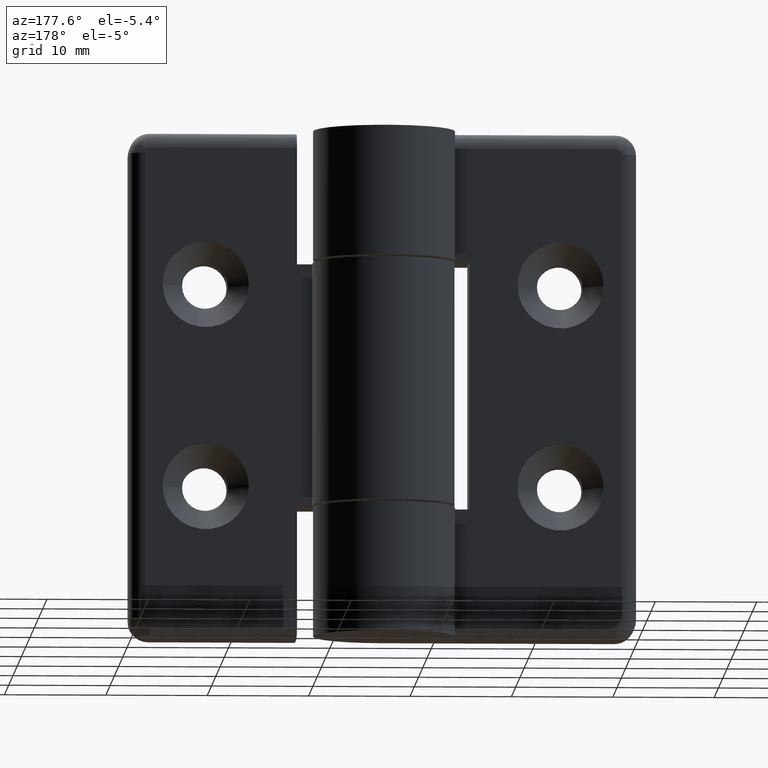
[diagram: clean part render]
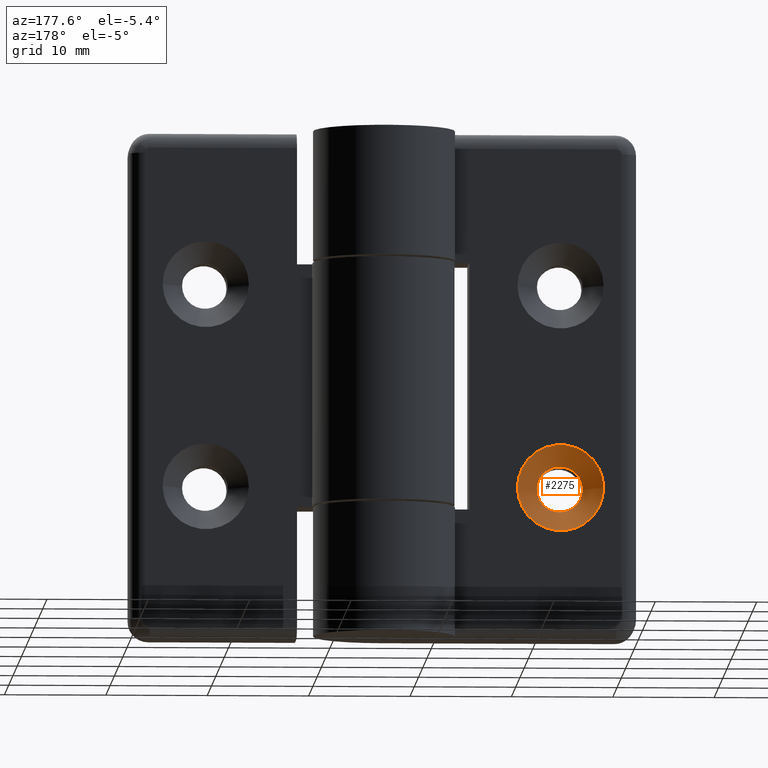
[diagram: same view with one face highlighted and labeled with its STEP entity id]
A machine part, auxiliary view. The second image highlights one B-rep face of the part: STEP entity #2275.
In plain terms, the highlighted conical surface has half-angle 45 deg.
Its self-contained STEP definition (entity closure, byte-faithful):
#40=FACE_BOUND('',#349,.T.);
#69=CONICAL_SURFACE('',#2483,3.25,0.785398163397448);
#199=FACE_OUTER_BOUND('',#348,.T.);
#348=EDGE_LOOP('',(#1701));
#349=EDGE_LOOP('',(#1702));
#849=CIRCLE('',#2484,4.25);
#850=CIRCLE('',#2485,2.25);
#1027=VERTEX_POINT('',#3814);
#1028=VERTEX_POINT('',#3816);
#1281=EDGE_CURVE('',#1027,#1027,#849,.T.);
#1282=EDGE_CURVE('',#1028,#1028,#850,.T.);
#1701=ORIENTED_EDGE('',*,*,#1281,.F.);
#1702=ORIENTED_EDGE('',*,*,#1282,.F.);
#2275=ADVANCED_FACE('',(#199,#40),#69,.F.);
#2483=AXIS2_PLACEMENT_3D('',#3813,#2944,#2945);
#2484=AXIS2_PLACEMENT_3D('',#3815,#2946,#2947);
#2485=AXIS2_PLACEMENT_3D('',#3817,#2948,#2949);
#2944=DIRECTION('center_axis',(0.,1.,0.));
#2945=DIRECTION('ref_axis',(1.,0.,0.));
#2946=DIRECTION('center_axis',(0.,-1.,0.));
#2947=DIRECTION('ref_axis',(1.,0.,0.));
#2948=DIRECTION('center_axis',(0.,1.,0.));
#2949=DIRECTION('ref_axis',(1.,0.,0.));
#3813=CARTESIAN_POINT('Origin',(-17.5,-3.,-10.));
#3814=CARTESIAN_POINT('',(-21.75,-2.,-10.));
#3815=CARTESIAN_POINT('Origin',(-17.5,-2.,-10.));
#3816=CARTESIAN_POINT('',(-19.75,-4.,-10.));
#3817=CARTESIAN_POINT('Origin',(-17.5,-4.,-10.));